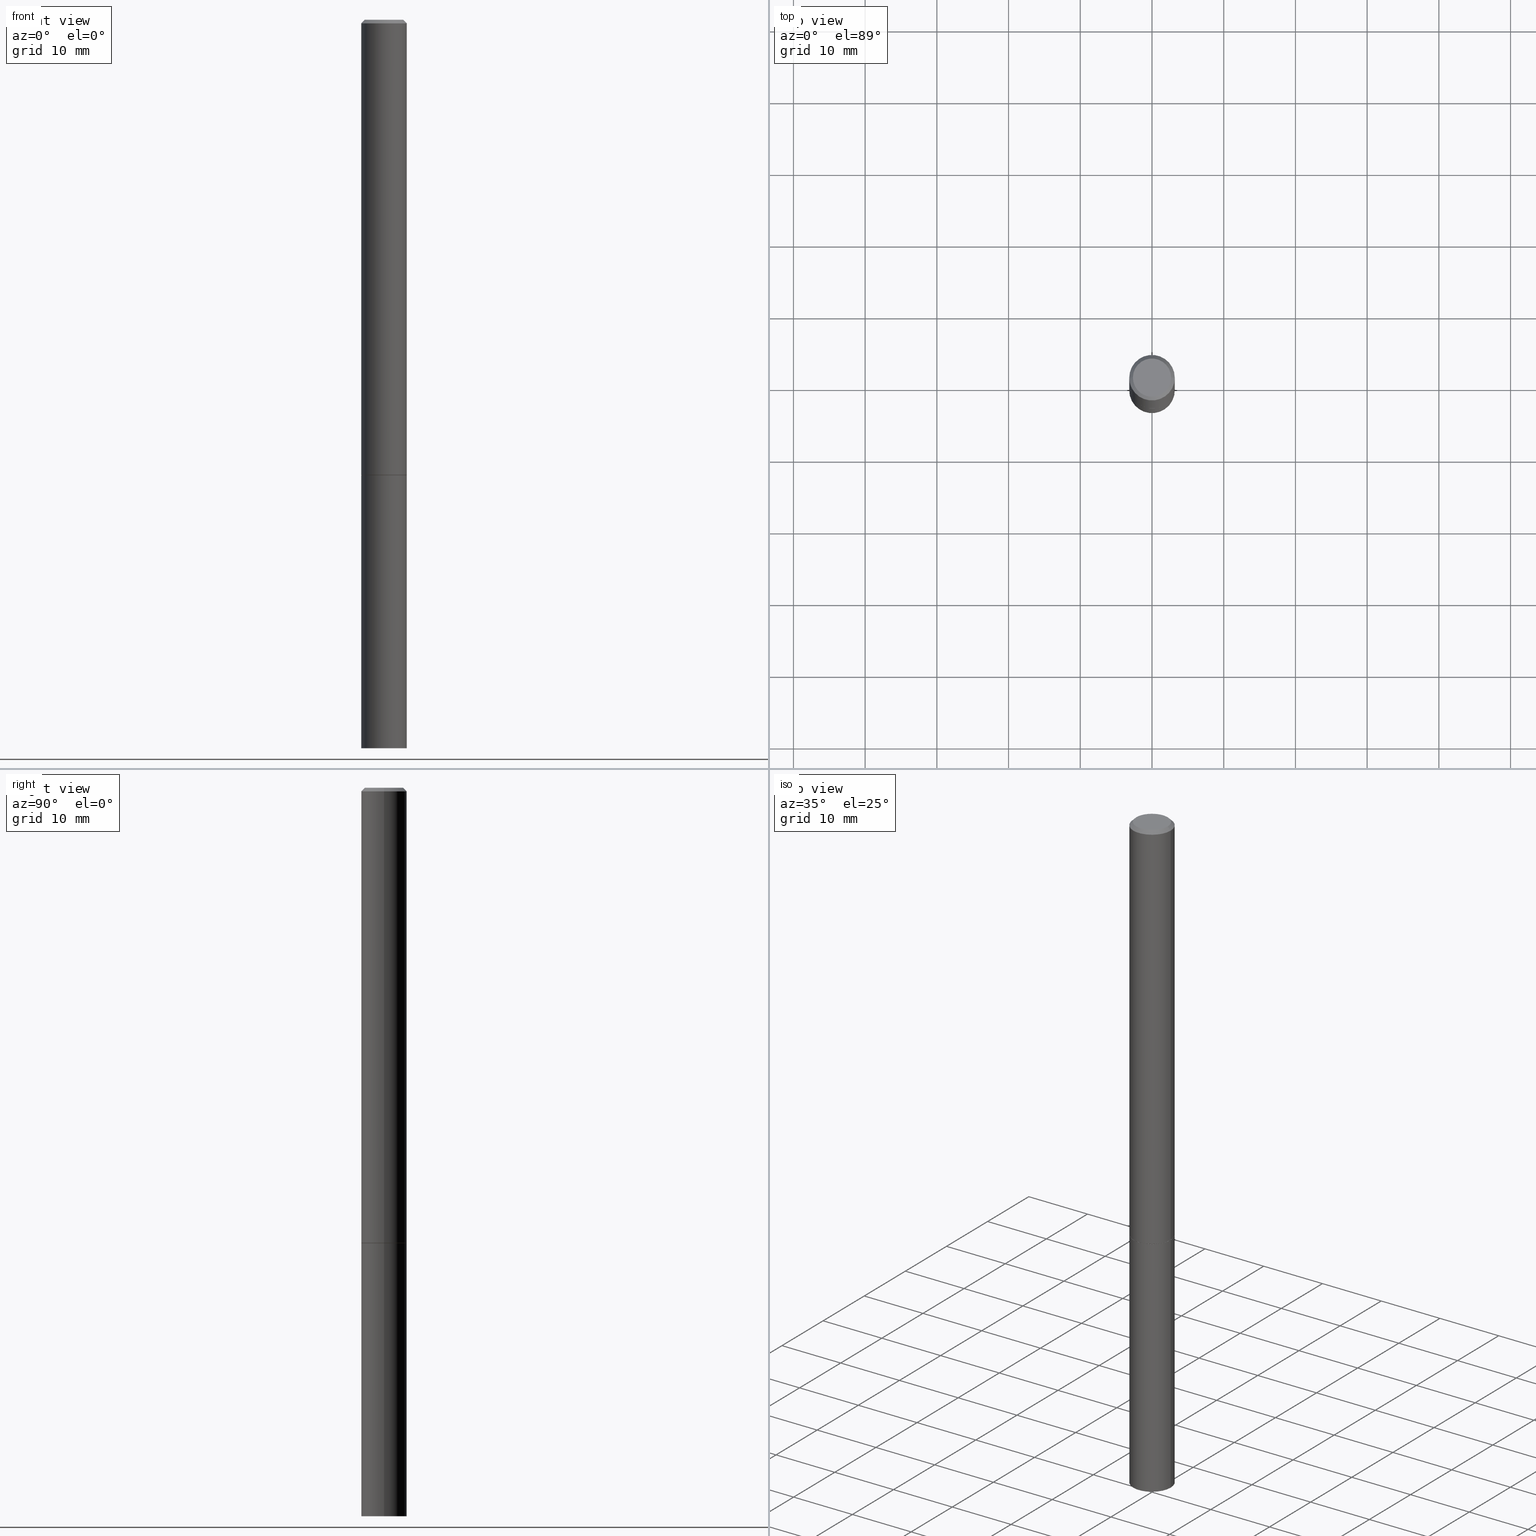
[diagram: canonical four-view strip — front | top / right | iso, engineering-drawing reading convention]
A machine part, canonical four-view strip (front | top / right | iso — engineering-drawing reading convention). The complete STEP part file that produces these views, byte-faithful:
ISO-10303-21;
HEADER;
FILE_DESCRIPTION (( 'STEP AP203' ),
    '1' );
FILE_NAME ('31882.STEP',
    '2023-03-21T20:35:27',
    ( '' ),
    ( '' ),
    'SwSTEP 2.0',
    'SolidWorks 2022',
    '' );
FILE_SCHEMA (( 'CONFIG_CONTROL_DESIGN' ));
ENDSEC;

DATA;
#1 = CONICAL_SURFACE ( 'NONE', #283, 0.1239999999999999991, 0.7853981633978239785 ) ;
#2 = DIRECTION ( 'NONE',  ( 1.000000000000000000, -6.982962677686262766E-15, 0.000000000000000000 ) ) ;
#3 = PRODUCT ( '31882', '31882', '', ( #208 ) ) ;
#4 = ADVANCED_FACE ( 'NONE', ( #201 ), #343, .T. ) ;
#5 = FACE_OUTER_BOUND ( 'NONE', #230, .T. ) ;
#6 = CARTESIAN_POINT ( 'NONE',  ( 4.890937612370274910E-31, -6.982962677686295307E-17, -0.02000000000000000736 ) ) ;
#7 = AXIS2_PLACEMENT_3D ( 'NONE', #217, #327, #156 ) ;
#8 = EDGE_CURVE ( 'NONE', #333, #229, #209, .T. ) ;
#9 = VERTEX_POINT ( 'NONE', #143 ) ;
#10 = ORIENTED_EDGE ( 'NONE', *, *, #19, .T. ) ;
#11 = EDGE_LOOP ( 'NONE', ( #102, #154, #176, #277 ) ) ;
#12 = CLOSED_SHELL ( 'NONE', ( #4, #40, #44, #363, #95 ) ) ;
#13 = EDGE_LOOP ( 'NONE', ( #247, #339, #365, #140 ) ) ;
#14 = VERTEX_POINT ( 'NONE', #294 ) ;
#15 = COORDINATED_UNIVERSAL_TIME_OFFSET ( 5, 0, .BEHIND. ) ;
#16 = DESIGN_CONTEXT ( 'detailed design', #133, 'design' ) ;
#17 = ORIENTED_EDGE ( 'NONE', *, *, #376, .F. ) ;
#18 = APPLICATION_PROTOCOL_DEFINITION ( 'international standard', 'config_control_design', 1994, #132 ) ;
#19 = EDGE_CURVE ( 'NONE', #125, #121, #116, .T. ) ;
#20 = CIRCLE ( 'NONE', #368, 0.1239999999999999991 ) ;
#21 = AXIS2_PLACEMENT_3D ( 'NONE', #380, #30, #159 ) ;
#22 = DIRECTION ( 'NONE',  ( -1.000000000000000000, 6.982962677686266711E-15, 0.000000000000000000 ) ) ;
#23 = DATE_AND_TIME ( #57, #388 ) ;
#24 = CARTESIAN_POINT ( 'NONE',  ( 0.1250000000000000000, -9.601573681818648281E-15, -2.500000000000000000 ) ) ;
#25 = DIRECTION ( 'NONE',  ( 1.000000000000000000, -6.982962677686270655E-15, 0.000000000000000000 ) ) ;
#26 = CARTESIAN_POINT ( 'NONE',  ( 8.728703347108443769E-16, 0.1249999999999912709, -2.500000000000000444 ) ) ;
#27 = DIRECTION ( 'NONE',  ( -2.445468806185136597E-29, 3.491481338843145583E-15, 1.000000000000000000 ) ) ;
#28 = CONICAL_SURFACE ( 'NONE', #386, 0.1249999999999997086, 0.7853981633974469467 ) ;
#29 = DIRECTION ( 'NONE',  ( 0.9986295347545742773, -7.033825938272001856E-15, -0.05233595624293820026 ) ) ;
#30 = DIRECTION ( 'NONE',  ( -2.445468806185136597E-29, 3.491481338843145583E-15, 1.000000000000000000 ) ) ;
#31 = DIRECTION ( 'NONE',  ( 1.000000000000000000, -6.982962677686262766E-15, 0.000000000000000000 ) ) ;
#32 = ORIENTED_EDGE ( 'NONE', *, *, #195, .F. ) ;
#33 = FACE_OUTER_BOUND ( 'NONE', #168, .T. ) ;
#34 = CIRCLE ( 'NONE', #313, 0.1250000000000000000 ) ;
#35 = CARTESIAN_POINT ( 'NONE',  ( 6.113672015462842613E-29, -8.728703347107864943E-15, -2.500000000000000000 ) ) ;
#36 = ORIENTED_EDGE ( 'NONE', *, *, #281, .F. ) ;
#37 = DIRECTION ( 'NONE',  ( -2.438088387897960049E-29, 3.491481338843145188E-15, 1.000000000000000000 ) ) ;
#38 = CARTESIAN_POINT ( 'NONE',  ( -1.484852196376641765E-18, -1.394305275745046578E-14, -3.993449027589620393 ) ) ;
#39 = DIRECTION ( 'NONE',  ( -2.445468806185136597E-29, 3.491481338843145583E-15, 1.000000000000000000 ) ) ;
#40 = ADVANCED_FACE ( 'NONE', ( #348 ), #161, .F. ) ;
#41 = EDGE_CURVE ( 'NONE', #290, #305, #150, .T. ) ;
#42 = CARTESIAN_POINT ( 'NONE',  ( 0.1249999999999997918, -1.482348760509402220E-14, -4.000000000000000000 ) ) ;
#43 = AXIS2_PLACEMENT_3D ( 'NONE', #284, #163, #282 ) ;
#44 = ADVANCED_FACE ( 'NONE', ( #112 ), #307, .F. ) ;
#45 = VERTEX_POINT ( 'NONE', #240 ) ;
#46 = CC_DESIGN_DATE_AND_TIME_ASSIGNMENT ( #204, #384, ( #85 ) ) ;
#47 = DIRECTION ( 'NONE',  ( 1.000000000000000000, -6.982962677686266711E-15, 4.876206205277405800E-29 ) ) ;
#48 = APPROVAL_DATE_TIME ( #317, #134 ) ;
#49 = EDGE_LOOP ( 'NONE', ( #98, #335, #341, #299 ) ) ;
#50 = PERSON_AND_ORGANIZATION_ROLE ( 'design_supplier' ) ;
#51 = VECTOR ( 'NONE', #29, 39.37007874015748854 ) ;
#52 = EDGE_LOOP ( 'NONE', ( #32, #234 ) ) ;
#53 = SHAPE_DEFINITION_REPRESENTATION ( #224, #170 ) ;
#54 = DIRECTION ( 'NONE',  ( -2.445468806185136877E-29, 3.491481338843145188E-15, 1.000000000000000000 ) ) ;
#55 = CARTESIAN_POINT ( 'NONE',  ( -0.1250000000000000000, 8.881784197001252323E-16, -6.148668862818632227E-30 ) ) ;
#56 = CARTESIAN_POINT ( 'NONE',  ( 0.1249999999999997086, -9.273918764983023769E-16, -0.02000000000000000736 ) ) ;
#57 = CALENDAR_DATE ( 2023, 21, 3 ) ;
#58 = FACE_OUTER_BOUND ( 'NONE', #342, .T. ) ;
#59 = AXIS2_PLACEMENT_3D ( 'NONE', #301, #280, #262 ) ;
#60 = EDGE_CURVE ( 'NONE', #199, #9, #338, .T. ) ;
#61 = CARTESIAN_POINT ( 'NONE',  ( 4.890937612370274910E-31, -6.982962677686295307E-17, -0.02000000000000000736 ) ) ;
#62 = EDGE_CURVE ( 'NONE', #9, #199, #268, .T. ) ;
#63 = CC_DESIGN_PERSON_AND_ORGANIZATION_ASSIGNMENT ( #375, #267, ( #145 ) ) ;
#64 = CARTESIAN_POINT ( 'NONE',  ( 0.000000000000000000, 0.000000000000000000, 0.000000000000000000 ) ) ;
#65 = FACE_OUTER_BOUND ( 'NONE', #263, .T. ) ;
#66 = ORIENTED_EDGE ( 'NONE', *, *, #296, .F. ) ;
#67 = AXIS2_PLACEMENT_3D ( 'NONE', #354, #207, #22 ) ;
#68 = CARTESIAN_POINT ( 'NONE',  ( 0.1239999999999999991, -9.594590719140960689E-15, -2.500000000000000000 ) ) ;
#69 = CONICAL_SURFACE ( 'NONE', #213, 0.1239999999999999991, 0.7853981633978239785 ) ;
#70 = CARTESIAN_POINT ( 'NONE',  ( -0.1249999999999997086, 8.030407079339183643E-16, -0.02000000000000000736 ) ) ;
#71 = ORIENTED_EDGE ( 'NONE', *, *, #131, .F. ) ;
#72 = ORIENTED_EDGE ( 'NONE', *, *, #106, .T. ) ;
#73 = AXIS2_PLACEMENT_3D ( 'NONE', #210, #383, #329 ) ;
#74 = EDGE_CURVE ( 'NONE', #139, #9, #387, .T. ) ;
#75 = CYLINDRICAL_SURFACE ( 'NONE', #361, 0.1250000000000000000 ) ;
#76 =( NAMED_UNIT ( * ) SI_UNIT ( $, .STERADIAN. ) SOLID_ANGLE_UNIT ( ) );
#77 = PERSON_AND_ORGANIZATION ( #374, #340 ) ;
#78 = DATE_AND_TIME ( #148, #320 ) ;
#79 = ORIENTED_EDGE ( 'NONE', *, *, #328, .T. ) ;
#80 = CC_DESIGN_PERSON_AND_ORGANIZATION_ASSIGNMENT ( #77, #50, ( #145 ) ) ;
#81 = DIRECTION ( 'NONE',  ( -2.445468806185136877E-29, 3.491481338843145188E-15, 1.000000000000000000 ) ) ;
#82 = DIRECTION ( 'NONE',  ( 0.000000000000000000, 0.000000000000000000, 1.000000000000000000 ) ) ;
#83 = APPROVAL_ROLE ( '' ) ;
#84 = CARTESIAN_POINT ( 'NONE',  ( 6.113672015462842613E-29, -8.728703347107864943E-15, -2.500000000000000000 ) ) ;
#85 = SECURITY_CLASSIFICATION ( '', '', #321 ) ;
#86 = ORIENTED_EDGE ( 'NONE', *, *, #119, .T. ) ;
#87 = DIRECTION ( 'NONE',  ( -2.445468806185136597E-29, 3.491481338843145583E-15, 1.000000000000000000 ) ) ;
#88 = PRODUCT_RELATED_PRODUCT_CATEGORY ( 'detail', '', ( #3 ) ) ;
#89 = DIRECTION ( 'NONE',  ( 1.000000000000000000, -6.982962677686270655E-15, 0.000000000000000000 ) ) ;
#90 = DIRECTION ( 'NONE',  ( -2.445468806185136597E-29, 3.491481338843145583E-15, 1.000000000000000000 ) ) ;
#91 = CC_DESIGN_DATE_AND_TIME_ASSIGNMENT ( #78, #355, ( #265 ) ) ;
#92 = DIRECTION ( 'NONE',  ( 2.445468806185136597E-29, -3.491481338843145583E-15, -1.000000000000000000 ) ) ;
#93 = ORIENTED_EDGE ( 'NONE', *, *, #227, .F. ) ;
#94 = CARTESIAN_POINT ( 'NONE',  ( 0.1249999999999998612, -8.728703347107823527E-16, 6.095220969744912735E-30 ) ) ;
#95 = ADVANCED_FACE ( 'NONE', ( #349 ), #151, .F. ) ;
#96 = DIRECTION ( 'NONE',  ( 1.000000000000000000, -6.982962677686262766E-15, 0.000000000000000000 ) ) ;
#97 = MANIFOLD_SOLID_BREP ( 'Body-Move/Copy2[2]', #241 ) ;
#98 = ORIENTED_EDGE ( 'NONE', *, *, #218, .F. ) ;
#99 = ORIENTED_EDGE ( 'NONE', *, *, #19, .F. ) ;
#100 = CC_DESIGN_PERSON_AND_ORGANIZATION_ASSIGNMENT ( #144, #379, ( #3 ) ) ;
#101 = ADVANCED_FACE ( 'NONE', ( #113 ), #196, .T. ) ;
#102 = ORIENTED_EDGE ( 'NONE', *, *, #111, .F. ) ;
#103 = CIRCLE ( 'NONE', #7, 0.1250000000000000000 ) ;
#104 = EDGE_LOOP ( 'NONE', ( #266, #109, #287, #261 ) ) ;
#105 = ORIENTED_EDGE ( 'NONE', *, *, #218, .T. ) ;
#106 = EDGE_CURVE ( 'NONE', #305, #229, #254, .T. ) ;
#107 = PERSON_AND_ORGANIZATION ( #374, #340 ) ;
#108 = VECTOR ( 'NONE', #248, 39.37007874015748854 ) ;
#109 = ORIENTED_EDGE ( 'NONE', *, *, #281, .T. ) ;
#110 = CALENDAR_DATE ( 2023, 21, 3 ) ;
#111 = EDGE_CURVE ( 'NONE', #125, #45, #222, .T. ) ;
#112 = FACE_OUTER_BOUND ( 'NONE', #291, .T. ) ;
#113 = FACE_OUTER_BOUND ( 'NONE', #11, .T. ) ;
#114 = APPROVAL_ROLE ( '' ) ;
#115 = VECTOR ( 'NONE', #215, 39.37007874015748143 ) ;
#116 = CIRCLE ( 'NONE', #286, 0.1049999999999997463 ) ;
#117 = DIRECTION ( 'NONE',  ( 1.000000000000000000, -6.982962677686270655E-15, 0.000000000000000000 ) ) ;
#118 = CARTESIAN_POINT ( 'NONE',  ( -0.1250000000000000000, -1.045913593154009919E-14, -2.500000000000000000 ) ) ;
#119 = EDGE_CURVE ( 'NONE', #14, #333, #279, .T. ) ;
#120 = EDGE_LOOP ( 'NONE', ( #231, #72 ) ) ;
#121 = VERTEX_POINT ( 'NONE', #158 ) ;
#122 = VECTOR ( 'NONE', #311, 39.37007874015748143 ) ;
#123 = AXIS2_PLACEMENT_3D ( 'NONE', #270, #82, #297 ) ;
#124 = CYLINDRICAL_SURFACE ( 'NONE', #129, 0.1249999999999998612 ) ;
#125 = VERTEX_POINT ( 'NONE', #358 ) ;
#126 = DIRECTION ( 'NONE',  ( -2.445468806185136597E-29, 3.491481338843145583E-15, 1.000000000000000000 ) ) ;
#127 = ORIENTED_EDGE ( 'NONE', *, *, #119, .F. ) ;
#128 =( NAMED_UNIT ( * ) PLANE_ANGLE_UNIT ( ) SI_UNIT ( $, .RADIAN. ) );
#129 = AXIS2_PLACEMENT_3D ( 'NONE', #64, #256, #364 ) ;
#130 = LOCAL_TIME ( 16, 35, 27.00000000000000000, #206 ) ;
#131 = EDGE_CURVE ( 'NONE', #9, #45, #332, .T. ) ;
#132 = APPLICATION_CONTEXT ( 'configuration controlled 3d designs of mechanical parts and assemblies' ) ;
#133 = APPLICATION_CONTEXT ( 'configuration controlled 3d designs of mechanical parts and assemblies' ) ;
#134 = APPROVAL ( #216, 'UNSPECIFIED' ) ;
#135 = AXIS2_PLACEMENT_3D ( 'NONE', #26, #351, #147 ) ;
#136 = CC_DESIGN_SECURITY_CLASSIFICATION ( #85, ( #145 ) ) ;
#137 = ORIENTED_EDGE ( 'NONE', *, *, #74, .T. ) ;
#138 = COORDINATED_UNIVERSAL_TIME_OFFSET ( 5, 0, .BEHIND. ) ;
#139 = VERTEX_POINT ( 'NONE', #68 ) ;
#140 = ORIENTED_EDGE ( 'NONE', *, *, #8, .F. ) ;
#141 = PERSON_AND_ORGANIZATION ( #374, #340 ) ;
#142 = ORIENTED_EDGE ( 'NONE', *, *, #195, .T. ) ;
#143 = CARTESIAN_POINT ( 'NONE',  ( 0.1250000000000000000, -9.598082200479808430E-15, -2.499000000000000998 ) ) ;
#144 = PERSON_AND_ORGANIZATION ( #374, #340 ) ;
#145 = PRODUCT_DEFINITION_FORMATION_WITH_SPECIFIED_SOURCE ( 'ANY', '', #3, .NOT_KNOWN. ) ;
#146 = CARTESIAN_POINT ( 'NONE',  ( 6.111226546656659252E-29, -8.725211865769023513E-15, -2.499000000000000998 ) ) ;
#147 = DIRECTION ( 'NONE',  ( -1.000000000000000000, 6.982962677686265922E-15, -4.876176775795935793E-29 ) ) ;
#148 = CALENDAR_DATE ( 2023, 21, 3 ) ;
#149 = ADVANCED_FACE ( 'NONE', ( #191 ), #187, .F. ) ;
#150 = LINE ( 'NONE', #55, #242 ) ;
#151 = PLANE ( 'NONE',  #135 ) ;
#152 = APPLICATION_PROTOCOL_DEFINITION ( 'international standard', 'config_control_design', 1994, #133 ) ;
#153 = CARTESIAN_POINT ( 'NONE',  ( -0.1249999999999997918, -1.309305502066180057E-14, -4.000000000000000000 ) ) ;
#154 = ORIENTED_EDGE ( 'NONE', *, *, #371, .F. ) ;
#155 = DIRECTION ( 'NONE',  ( 0.7071067811865465735, -7.319954787623252890E-15, -0.7071067811865484609 ) ) ;
#156 = DIRECTION ( 'NONE',  ( 1.000000000000000000, -6.982962677686262766E-15, 0.000000000000000000 ) ) ;
#157 = VECTOR ( 'NONE', #385, 39.37007874015748143 ) ;
#158 = CARTESIAN_POINT ( 'NONE',  ( -0.1049999999999997463, 7.681258945454873068E-16, 4.268512490095161194E-18 ) ) ;
#159 = DIRECTION ( 'NONE',  ( 1.000000000000000000, -6.982962677686266711E-15, 4.876206205277405800E-29 ) ) ;
#160 = DIRECTION ( 'NONE',  ( -2.445468806185136597E-29, 3.491481338843145583E-15, 1.000000000000000000 ) ) ;
#161 = CONICAL_SURFACE ( 'NONE', #377, 751.2258538476485228, 1.518436449235072372 ) ;
#162 = CARTESIAN_POINT ( 'NONE',  ( 6.113672015462842613E-29, -8.728703347107864943E-15, -2.500000000000000000 ) ) ;
#163 = DIRECTION ( 'NONE',  ( -2.445468806185136597E-29, 3.491481338843145583E-15, 1.000000000000000000 ) ) ;
#164 = DIMENSIONAL_EXPONENTS ( 1.000000000000000000, 0.000000000000000000, 0.000000000000000000, 0.000000000000000000, 0.000000000000000000, 0.000000000000000000, 0.000000000000000000 ) ;
#165 = FACE_OUTER_BOUND ( 'NONE', #104, .T. ) ;
#166 = VECTOR ( 'NONE', #54, 39.37007874015748143 ) ;
#167 = EDGE_CURVE ( 'NONE', #45, #378, #189, .T. ) ;
#168 = EDGE_LOOP ( 'NONE', ( #293, #105, #373, #71 ) ) ;
#169 = ORIENTED_EDGE ( 'NONE', *, *, #381, .T. ) ;
#170 = ADVANCED_BREP_SHAPE_REPRESENTATION ( '31882', ( #250, #97, #123 ), #173 ) ;
#171 = VERTEX_POINT ( 'NONE', #336 ) ;
#172 = EDGE_CURVE ( 'NONE', #378, #45, #360, .T. ) ;
#173 =( GEOMETRIC_REPRESENTATION_CONTEXT ( 3 ) GLOBAL_UNCERTAINTY_ASSIGNED_CONTEXT ( ( #233 ) ) GLOBAL_UNIT_ASSIGNED_CONTEXT ( ( #310, #128, #76 ) ) REPRESENTATION_CONTEXT ( 'NONE', 'WORKASPACE' ) );
#174 = PERSON_AND_ORGANIZATION_ROLE ( 'classification_officer' ) ;
#175 = CARTESIAN_POINT ( 'NONE',  ( 0.1239999999999999991, -9.594590719140960689E-15, -2.500000000000000000 ) ) ;
#176 = ORIENTED_EDGE ( 'NONE', *, *, #296, .T. ) ;
#177 = DIRECTION ( 'NONE',  ( 1.000000000000000000, -6.982962677686266711E-15, 4.876176775795935793E-29 ) ) ;
#178 = AXIS2_PLACEMENT_3D ( 'NONE', #61, #160, #186 ) ;
#179 = PERSON_AND_ORGANIZATION ( #374, #340 ) ;
#180 = APPROVAL_PERSON_ORGANIZATION ( #107, #194, #326 ) ;
#181 = ORIENTED_EDGE ( 'NONE', *, *, #74, .F. ) ;
#182 = DIRECTION ( 'NONE',  ( 2.445468806185136597E-29, -3.491481338843145583E-15, -1.000000000000000000 ) ) ;
#183 = CARTESIAN_POINT ( 'NONE',  ( 7.332110811570562494E-16, 0.1049999999999997463, -3.644712843334792426E-16 ) ) ;
#184 = FACE_OUTER_BOUND ( 'NONE', #49, .T. ) ;
#185 = ADVANCED_FACE ( 'NONE', ( #5 ), #1, .T. ) ;
#186 = DIRECTION ( 'NONE',  ( 1.000000000000000000, -6.982962677686266711E-15, 0.000000000000000000 ) ) ;
#187 = PLANE ( 'NONE',  #202 ) ;
#188 = CC_DESIGN_PERSON_AND_ORGANIZATION_ASSIGNMENT ( #179, #174, ( #85 ) ) ;
#189 = CIRCLE ( 'NONE', #178, 0.1249999999999997086 ) ;
#190 = DIRECTION ( 'NONE',  ( 1.000000000000000000, -6.982962677686262766E-15, 0.000000000000000000 ) ) ;
#191 = FACE_OUTER_BOUND ( 'NONE', #52, .T. ) ;
#192 = CARTESIAN_POINT ( 'NONE',  ( 6.113672015462842613E-29, -8.728703347107864943E-15, -2.500000000000000000 ) ) ;
#193 = LENGTH_MEASURE_WITH_UNIT ( LENGTH_MEASURE( 0.02539999999999999897 ), #312 );
#194 = APPROVAL ( #295, 'UNSPECIFIED' ) ;
#195 = EDGE_CURVE ( 'NONE', #139, #171, #20, .T. ) ;
#196 = CONICAL_SURFACE ( 'NONE', #73, 0.1249999999999997086, 0.7853981633974469467 ) ;
#197 = AXIS2_PLACEMENT_3D ( 'NONE', #192, #337, #190 ) ;
#198 = CARTESIAN_POINT ( 'NONE',  ( 0.000000000000000000, 0.000000000000000000, 0.000000000000000000 ) ) ;
#199 = VERTEX_POINT ( 'NONE', #257 ) ;
#200 = ADVANCED_FACE ( 'NONE', ( #306 ), #28, .T. ) ;
#201 = FACE_OUTER_BOUND ( 'NONE', #13, .T. ) ;
#202 = AXIS2_PLACEMENT_3D ( 'NONE', #35, #37, #223 ) ;
#203 = CC_DESIGN_APPROVAL ( #288, ( #265 ) ) ;
#204 = DATE_AND_TIME ( #272, #130 ) ;
#205 = ADVANCED_FACE ( 'NONE', ( #33 ), #124, .T. ) ;
#206 = COORDINATED_UNIVERSAL_TIME_OFFSET ( 5, 0, .BEHIND. ) ;
#207 = DIRECTION ( 'NONE',  ( 2.445468806185136597E-29, -3.491481338843145583E-15, -1.000000000000000000 ) ) ;
#208 = MECHANICAL_CONTEXT ( 'NONE', #132, 'mechanical' ) ;
#209 = LINE ( 'NONE', #239, #115 ) ;
#210 = CARTESIAN_POINT ( 'NONE',  ( 4.890937612370274910E-31, -6.982962677686295307E-17, -0.02000000000000000736 ) ) ;
#211 = AXIS2_PLACEMENT_3D ( 'NONE', #271, #87, #25 ) ;
#212 = COORDINATED_UNIVERSAL_TIME_OFFSET ( 5, 0, .BEHIND. ) ;
#213 = AXIS2_PLACEMENT_3D ( 'NONE', #347, #253, #31 ) ;
#214 = CARTESIAN_POINT ( 'NONE',  ( -0.1249999999999998612, 8.881784197001242463E-16, -6.148668862818625221E-30 ) ) ;
#215 = DIRECTION ( 'NONE',  ( -2.445468806185136877E-29, 3.491481338843145188E-15, 1.000000000000000000 ) ) ;
#216 = APPROVAL_STATUS ( 'not_yet_approved' ) ;
#217 = CARTESIAN_POINT ( 'NONE',  ( 9.781875224740546387E-29, -1.396592535537258233E-14, -4.000000000000000000 ) ) ;
#218 = EDGE_CURVE ( 'NONE', #199, #378, #334, .T. ) ;
#219 = ORIENTED_EDGE ( 'NONE', *, *, #371, .T. ) ;
#220 = CC_DESIGN_APPROVAL ( #134, ( #145 ) ) ;
#221 = CIRCLE ( 'NONE', #197, 0.1239999999999999991 ) ;
#222 = LINE ( 'NONE', #56, #226 ) ;
#223 = DIRECTION ( 'NONE',  ( 1.000000000000000000, -6.982962677686265922E-15, 4.876176775795935793E-29 ) ) ;
#224 = PRODUCT_DEFINITION_SHAPE ( 'NONE', 'NONE',  #265 ) ;
#225 = DIRECTION ( 'NONE',  ( 1.000000000000000000, -6.982962677686262766E-15, 0.000000000000000000 ) ) ;
#226 = VECTOR ( 'NONE', #155, 39.37007874015748143 ) ;
#227 = EDGE_CURVE ( 'NONE', #171, #199, #245, .T. ) ;
#228 = LINE ( 'NONE', #38, #330 ) ;
#229 = VERTEX_POINT ( 'NONE', #24 ) ;
#230 = EDGE_LOOP ( 'NONE', ( #142, #246, #362, #181 ) ) ;
#231 = ORIENTED_EDGE ( 'NONE', *, *, #237, .T. ) ;
#232 = ORIENTED_EDGE ( 'NONE', *, *, #111, .T. ) ;
#233 = UNCERTAINTY_MEASURE_WITH_UNIT (LENGTH_MEASURE( 1.000000000000000082E-05 ), #310, 'distance_accuracy_value', 'NONE');
#234 = ORIENTED_EDGE ( 'NONE', *, *, #381, .F. ) ;
#235 = LOCAL_TIME ( 16, 35, 27.00000000000000000, #212 ) ;
#236 = APPROVAL_DATE_TIME ( #344, #288 ) ;
#237 = EDGE_CURVE ( 'NONE', #229, #305, #34, .T. ) ;
#238 = DIRECTION ( 'NONE',  ( -2.445468806185136597E-29, 3.491481338843145583E-15, 1.000000000000000000 ) ) ;
#239 = CARTESIAN_POINT ( 'NONE',  ( 0.1250000000000000000, -8.728703347107833388E-16, 6.095220969744919741E-30 ) ) ;
#240 = CARTESIAN_POINT ( 'NONE',  ( 0.1249999999999997086, -9.273918764983023769E-16, -0.02000000000000000736 ) ) ;
#241 = CLOSED_SHELL ( 'NONE', ( #185, #205, #200, #101, #322, #370, #149, #309 ) ) ;
#242 = VECTOR ( 'NONE', #81, 39.37007874015748143 ) ;
#243 = PERSON_AND_ORGANIZATION_ROLE ( 'creator' ) ;
#244 = CIRCLE ( 'NONE', #21, 0.1049999999999997463 ) ;
#245 = LINE ( 'NONE', #356, #318 ) ;
#246 = ORIENTED_EDGE ( 'NONE', *, *, #227, .T. ) ;
#247 = ORIENTED_EDGE ( 'NONE', *, *, #376, .T. ) ;
#248 = DIRECTION ( 'NONE',  ( 0.7071067811868130271, -2.468850131085038979E-15, 0.7071067811862817853 ) ) ;
#249 = CARTESIAN_POINT ( 'NONE',  ( 1.484852196571958602E-18, -1.394305275745046578E-14, -3.993449027589620393 ) ) ;
#250 = MANIFOLD_SOLID_BREP ( 'Body-Move/Copy2[1]', #12 ) ;
#251 = LINE ( 'NONE', #323, #157 ) ;
#252 = EDGE_LOOP ( 'NONE', ( #316, #86, #36 ) ) ;
#253 = DIRECTION ( 'NONE',  ( -2.445468806185136597E-29, 3.491481338843145583E-15, 1.000000000000000000 ) ) ;
#254 = CIRCLE ( 'NONE', #353, 0.1250000000000000000 ) ;
#255 = APPROVAL_PERSON_ORGANIZATION ( #372, #288, #114 ) ;
#256 = DIRECTION ( 'NONE',  ( -2.445468806185136597E-29, 3.491481338843145583E-15, 1.000000000000000000 ) ) ;
#257 = CARTESIAN_POINT ( 'NONE',  ( -0.1250000000000000000, -3.509342326572812651E-15, -2.499000000000000998 ) ) ;
#258 = ORIENTED_EDGE ( 'NONE', *, *, #167, .T. ) ;
#259 = AXIS2_PLACEMENT_3D ( 'NONE', #183, #390, #357 ) ;
#260 = AXIS2_PLACEMENT_3D ( 'NONE', #359, #369, #96 ) ;
#261 = ORIENTED_EDGE ( 'NONE', *, *, #106, .F. ) ;
#262 = DIRECTION ( 'NONE',  ( 1.000000000000000000, -6.982962677686266711E-15, 4.876176775795935793E-29 ) ) ;
#263 = EDGE_LOOP ( 'NONE', ( #93, #169, #137, #273 ) ) ;
#264 = EDGE_LOOP ( 'NONE', ( #99, #232, #258, #66 ) ) ;
#265 = PRODUCT_DEFINITION ( 'UNKNOWN', '', #145, #16 ) ;
#266 = ORIENTED_EDGE ( 'NONE', *, *, #41, .F. ) ;
#267 = PERSON_AND_ORGANIZATION_ROLE ( 'creator' ) ;
#268 = CIRCLE ( 'NONE', #302, 0.1250000000000000000 ) ;
#269 = DIRECTION ( 'NONE',  ( -2.445468806185136597E-29, 3.491481338843145583E-15, 1.000000000000000000 ) ) ;
#270 = CARTESIAN_POINT ( 'NONE',  ( 0.000000000000000000, 0.000000000000000000, 0.000000000000000000 ) ) ;
#271 = CARTESIAN_POINT ( 'NONE',  ( 6.111226546656659252E-29, -8.725211865769023513E-15, -2.499000000000000998 ) ) ;
#272 = CALENDAR_DATE ( 2023, 21, 3 ) ;
#273 = ORIENTED_EDGE ( 'NONE', *, *, #60, .F. ) ;
#274 = CARTESIAN_POINT ( 'NONE',  ( -1.043851414335219820E-46, 1.490343170380447200E-32, 4.268512490100411279E-18 ) ) ;
#275 = APPROVAL_STATUS ( 'not_yet_approved' ) ;
#276 = PLANE ( 'NONE',  #259 ) ;
#277 = ORIENTED_EDGE ( 'NONE', *, *, #172, .T. ) ;
#278 = CC_DESIGN_PERSON_AND_ORGANIZATION_ASSIGNMENT ( #141, #243, ( #265 ) ) ;
#279 = LINE ( 'NONE', #249, #51 ) ;
#280 = DIRECTION ( 'NONE',  ( -2.445468806185136597E-29, 3.491481338843145583E-15, 1.000000000000000000 ) ) ;
#281 = EDGE_CURVE ( 'NONE', #290, #333, #103, .T. ) ;
#282 = DIRECTION ( 'NONE',  ( 1.000000000000000000, -6.982962677686266711E-15, 0.000000000000000000 ) ) ;
#283 = AXIS2_PLACEMENT_3D ( 'NONE', #162, #304, #2 ) ;
#284 = CARTESIAN_POINT ( 'NONE',  ( 4.890937612370274910E-31, -6.982962677686295307E-17, -0.02000000000000000736 ) ) ;
#285 = CARTESIAN_POINT ( 'NONE',  ( 6.113672015462842613E-29, -8.728703347107864943E-15, -2.500000000000000000 ) ) ;
#286 = AXIS2_PLACEMENT_3D ( 'NONE', #274, #269, #47 ) ;
#287 = ORIENTED_EDGE ( 'NONE', *, *, #8, .T. ) ;
#288 = APPROVAL ( #275, 'UNSPECIFIED' ) ;
#289 = CC_DESIGN_APPROVAL ( #194, ( #85 ) ) ;
#290 = VERTEX_POINT ( 'NONE', #153 ) ;
#291 = EDGE_LOOP ( 'NONE', ( #127, #79, #17 ) ) ;
#292 = DIRECTION ( 'NONE',  ( -2.445468806185136597E-29, 3.491481338843145583E-15, 1.000000000000000000 ) ) ;
#293 = ORIENTED_EDGE ( 'NONE', *, *, #62, .T. ) ;
#294 = CARTESIAN_POINT ( 'NONE',  ( 9.764818159313798304E-29, -1.394453760964694098E-14, -3.993449027589620393 ) ) ;
#295 = APPROVAL_STATUS ( 'not_yet_approved' ) ;
#296 = EDGE_CURVE ( 'NONE', #121, #378, #251, .T. ) ;
#297 = DIRECTION ( 'NONE',  ( 1.000000000000000000, 0.000000000000000000, 0.000000000000000000 ) ) ;
#298 = CYLINDRICAL_SURFACE ( 'NONE', #59, 0.1249999999999998612 ) ;
#299 = ORIENTED_EDGE ( 'NONE', *, *, #172, .F. ) ;
#300 = CALENDAR_DATE ( 2023, 21, 3 ) ;
#301 = CARTESIAN_POINT ( 'NONE',  ( 0.000000000000000000, 0.000000000000000000, 0.000000000000000000 ) ) ;
#302 = AXIS2_PLACEMENT_3D ( 'NONE', #146, #292, #117 ) ;
#303 = DIRECTION ( 'NONE',  ( 1.000000000000000000, -6.982962677686266711E-15, 4.876176775795935793E-29 ) ) ;
#304 = DIRECTION ( 'NONE',  ( -2.445468806185136597E-29, 3.491481338843145583E-15, 1.000000000000000000 ) ) ;
#305 = VERTEX_POINT ( 'NONE', #118 ) ;
#306 = FACE_OUTER_BOUND ( 'NONE', #264, .T. ) ;
#307 = CONICAL_SURFACE ( 'NONE', #67, 751.2258538476485228, 1.518436449235072372 ) ;
#308 = LOCAL_TIME ( 16, 35, 27.00000000000000000, #15 ) ;
#309 = ADVANCED_FACE ( 'NONE', ( #58 ), #276, .F. ) ;
#310 =( CONVERSION_BASED_UNIT ( 'INCH', #193 ) LENGTH_UNIT ( ) NAMED_UNIT ( #164 ) );
#311 = DIRECTION ( 'NONE',  ( -2.445468806185136877E-29, 3.491481338843145188E-15, 1.000000000000000000 ) ) ;
#312 =( LENGTH_UNIT ( ) NAMED_UNIT ( * ) SI_UNIT ( $, .METRE. ) );
#313 = AXIS2_PLACEMENT_3D ( 'NONE', #84, #27, #89 ) ;
#314 = APPROVAL_PERSON_ORGANIZATION ( #350, #134, #83 ) ;
#315 = APPROVAL_DATE_TIME ( #23, #194 ) ;
#316 = ORIENTED_EDGE ( 'NONE', *, *, #328, .F. ) ;
#317 = DATE_AND_TIME ( #110, #308 ) ;
#318 = VECTOR ( 'NONE', #352, 39.37007874015748854 ) ;
#319 = CARTESIAN_POINT ( 'NONE',  ( 1.060441544821685163E-27, -1.514029479874955731E-13, -43.36352776774710094 ) ) ;
#320 = LOCAL_TIME ( 16, 35, 27.00000000000000000, #346 ) ;
#321 = SECURITY_CLASSIFICATION_LEVEL ( 'unclassified' ) ;
#322 = ADVANCED_FACE ( 'NONE', ( #184 ), #298, .T. ) ;
#323 = CARTESIAN_POINT ( 'NONE',  ( -0.1249999999999997086, 8.030407079339183643E-16, -0.02000000000000000736 ) ) ;
#324 = DIRECTION ( 'NONE',  ( -1.000000000000000000, 6.982962677686266711E-15, 0.000000000000000000 ) ) ;
#325 = CARTESIAN_POINT ( 'NONE',  ( 6.113672015462842613E-29, -8.728703347107864943E-15, -2.500000000000000000 ) ) ;
#326 = APPROVAL_ROLE ( '' ) ;
#327 = DIRECTION ( 'NONE',  ( -2.445468806185136597E-29, 3.491481338843145583E-15, 1.000000000000000000 ) ) ;
#328 = EDGE_CURVE ( 'NONE', #14, #290, #228, .T. ) ;
#329 = DIRECTION ( 'NONE',  ( -1.000000000000000000, 6.982962677686266711E-15, 0.000000000000000000 ) ) ;
#330 = VECTOR ( 'NONE', #367, 39.37007874015748854 ) ;
#331 = CIRCLE ( 'NONE', #260, 0.1250000000000000000 ) ;
#332 = LINE ( 'NONE', #94, #122 ) ;
#333 = VERTEX_POINT ( 'NONE', #42 ) ;
#334 = LINE ( 'NONE', #214, #166 ) ;
#335 = ORIENTED_EDGE ( 'NONE', *, *, #60, .T. ) ;
#336 = CARTESIAN_POINT ( 'NONE',  ( -0.1239999999999999991, -7.842331900417119105E-15, -2.500000000000000000 ) ) ;
#337 = DIRECTION ( 'NONE',  ( -2.445468806185136597E-29, 3.491481338843145583E-15, 1.000000000000000000 ) ) ;
#338 = CIRCLE ( 'NONE', #211, 0.1250000000000000000 ) ;
#339 = ORIENTED_EDGE ( 'NONE', *, *, #41, .T. ) ;
#340 = ORGANIZATION ( 'UNSPECIFIED', 'UNSPECIFIED', '' ) ;
#341 = ORIENTED_EDGE ( 'NONE', *, *, #131, .T. ) ;
#342 = EDGE_LOOP ( 'NONE', ( #219, #10 ) ) ;
#343 = CYLINDRICAL_SURFACE ( 'NONE', #345, 0.1250000000000000000 ) ;
#344 = DATE_AND_TIME ( #300, #235 ) ;
#345 = AXIS2_PLACEMENT_3D ( 'NONE', #382, #238, #177 ) ;
#346 = COORDINATED_UNIVERSAL_TIME_OFFSET ( 5, 0, .BEHIND. ) ;
#347 = CARTESIAN_POINT ( 'NONE',  ( 6.113672015462842613E-29, -8.728703347107864943E-15, -2.500000000000000000 ) ) ;
#348 = FACE_OUTER_BOUND ( 'NONE', #252, .T. ) ;
#349 = FACE_OUTER_BOUND ( 'NONE', #120, .T. ) ;
#350 = PERSON_AND_ORGANIZATION ( #374, #340 ) ;
#351 = DIRECTION ( 'NONE',  ( 2.438088387897960049E-29, -3.491481338843145188E-15, -1.000000000000000000 ) ) ;
#352 = DIRECTION ( 'NONE',  ( -0.7071067811868130271, 7.493145998871311837E-15, 0.7071067811862817853 ) ) ;
#353 = AXIS2_PLACEMENT_3D ( 'NONE', #325, #90, #389 ) ;
#354 = CARTESIAN_POINT ( 'NONE',  ( 1.060441544821685163E-27, -1.514029479874955731E-13, -43.36352776774710094 ) ) ;
#355 = DATE_TIME_ROLE ( 'creation_date' ) ;
#356 = CARTESIAN_POINT ( 'NONE',  ( -0.1239999999999999991, -7.847630354765339930E-15, -2.500000000000000000 ) ) ;
#357 = DIRECTION ( 'NONE',  ( -1.000000000000000000, 6.982962677686265922E-15, -4.876176775795935793E-29 ) ) ;
#358 = CARTESIAN_POINT ( 'NONE',  ( 0.1049999999999997463, -8.238720831321557908E-16, 4.268512490105855498E-18 ) ) ;
#359 = CARTESIAN_POINT ( 'NONE',  ( 9.781875224740546387E-29, -1.396592535537258233E-14, -4.000000000000000000 ) ) ;
#360 = CIRCLE ( 'NONE', #43, 0.1249999999999997086 ) ;
#361 = AXIS2_PLACEMENT_3D ( 'NONE', #198, #39, #303 ) ;
#362 = ORIENTED_EDGE ( 'NONE', *, *, #62, .F. ) ;
#363 = ADVANCED_FACE ( 'NONE', ( #165 ), #75, .T. ) ;
#364 = DIRECTION ( 'NONE',  ( 1.000000000000000000, -6.982962677686266711E-15, 4.876176775795935793E-29 ) ) ;
#365 = ORIENTED_EDGE ( 'NONE', *, *, #237, .F. ) ;
#366 = DIRECTION ( 'NONE',  ( -1.000000000000000000, 6.982962677686266711E-15, 0.000000000000000000 ) ) ;
#367 = DIRECTION ( 'NONE',  ( -0.9986295347545742773, 6.790662755453662155E-15, -0.05233595624293820026 ) ) ;
#368 = AXIS2_PLACEMENT_3D ( 'NONE', #285, #126, #225 ) ;
#369 = DIRECTION ( 'NONE',  ( -2.445468806185136597E-29, 3.491481338843145583E-15, 1.000000000000000000 ) ) ;
#370 = ADVANCED_FACE ( 'NONE', ( #65 ), #69, .T. ) ;
#371 = EDGE_CURVE ( 'NONE', #121, #125, #244, .T. ) ;
#372 = PERSON_AND_ORGANIZATION ( #374, #340 ) ;
#373 = ORIENTED_EDGE ( 'NONE', *, *, #167, .F. ) ;
#374 = PERSON ( 'UNSPECIFIED', 'UNSPECIFIED', 'UNSPECIFIED', ('UNSPECIFIED'), ('UNSPECIFIED'), ('UNSPECIFIED') ) ;
#375 = PERSON_AND_ORGANIZATION ( #374, #340 ) ;
#376 = EDGE_CURVE ( 'NONE', #333, #290, #331, .T. ) ;
#377 = AXIS2_PLACEMENT_3D ( 'NONE', #319, #182, #324 ) ;
#378 = VERTEX_POINT ( 'NONE', #70 ) ;
#379 = PERSON_AND_ORGANIZATION_ROLE ( 'design_owner' ) ;
#380 = CARTESIAN_POINT ( 'NONE',  ( -1.043851414335219820E-46, 1.490343170380447200E-32, 4.268512490100411279E-18 ) ) ;
#381 = EDGE_CURVE ( 'NONE', #171, #139, #221, .T. ) ;
#382 = CARTESIAN_POINT ( 'NONE',  ( 0.000000000000000000, 0.000000000000000000, 0.000000000000000000 ) ) ;
#383 = DIRECTION ( 'NONE',  ( 2.445468806185136597E-29, -3.491481338843145583E-15, -1.000000000000000000 ) ) ;
#384 = DATE_TIME_ROLE ( 'classification_date' ) ;
#385 = DIRECTION ( 'NONE',  ( -0.7071067811865465735, 2.468850131082246805E-15, -0.7071067811865484609 ) ) ;
#386 = AXIS2_PLACEMENT_3D ( 'NONE', #6, #92, #366 ) ;
#387 = LINE ( 'NONE', #175, #108 ) ;
#388 = LOCAL_TIME ( 16, 35, 27.00000000000000000, #138 ) ;
#389 = DIRECTION ( 'NONE',  ( 1.000000000000000000, -6.982962677686270655E-15, 0.000000000000000000 ) ) ;
#390 = DIRECTION ( 'NONE',  ( 2.438088387897960049E-29, -3.491481338843145188E-15, -1.000000000000000000 ) ) ;
ENDSEC;
END-ISO-10303-21;
